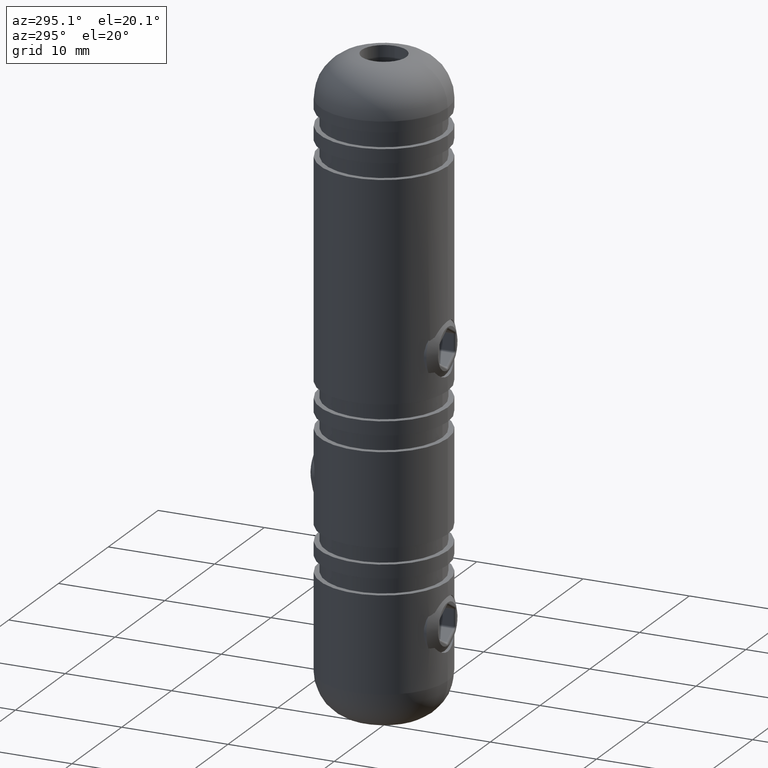
[diagram: clean part render]
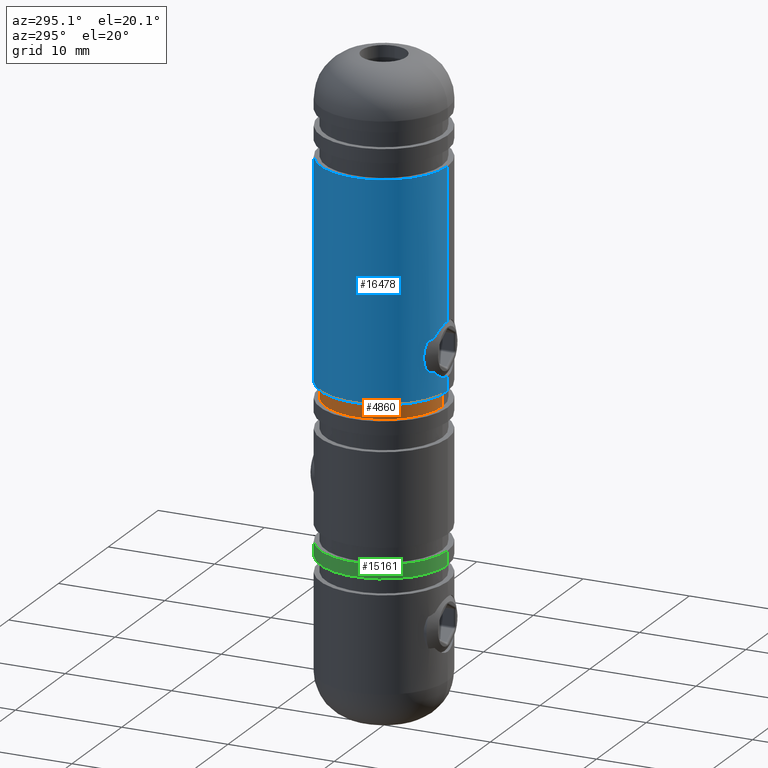
[diagram: same view with three faces highlighted in distinct colors, each labeled with its STEP entity id]
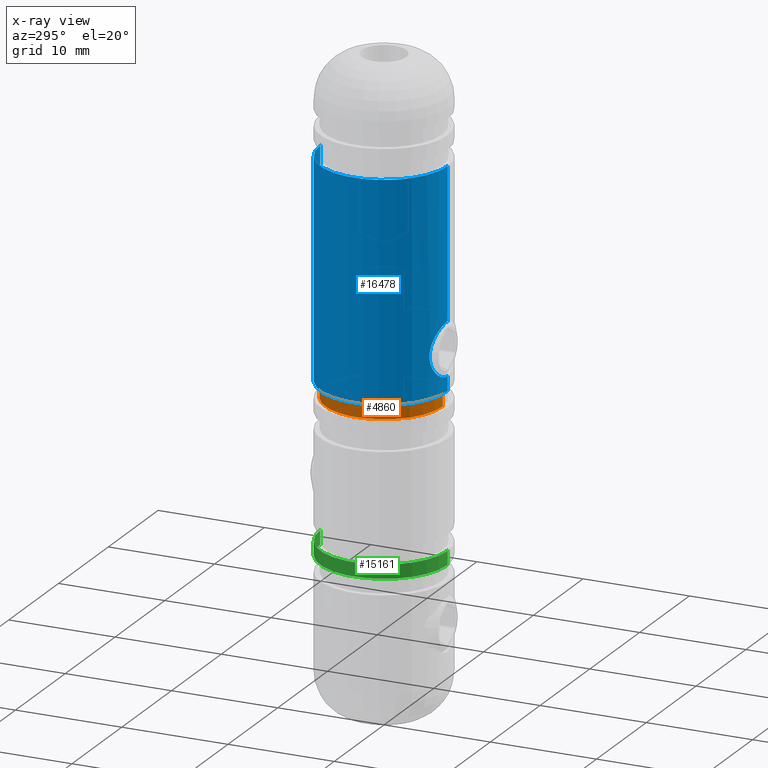
[diagram: x-ray of the same camera — body ghosted, the three highlighted faces saturated]
A machine part, auxiliary view with three faces highlighted in distinct colors.
The next image is the same camera in x-ray (body ghosted, the three faces saturated) — at least one of them is partly hidden behind the body in this view.
Their STEP definitions:

[orange] entity #4860 — the highlighted cylindrical surface (partial cylindrical patch) has radius 5.5 mm, axis along (0, 0, 1).
#1307 = VERTEX_POINT ( 'NONE', #1915 ) ;
#1667 = DIRECTION ( 'NONE',  ( -0.0000000000000000000, 6.237694939725493400E-017, 1.000000000000000000 ) ) ;
#1915 = CARTESIAN_POINT ( 'NONE',  ( 6.735557395310422300E-016, 5.499999999999981300, 0.2999999999999909400 ) ) ;
#2183 = AXIS2_PLACEMENT_3D ( 'NONE', #3380, #12903, #7274 ) ;
#2356 = CARTESIAN_POINT ( 'NONE',  ( 0.0000000000000000000, -5.499999999999984900, -1.200000000000006200 ) ) ;
#2532 = CARTESIAN_POINT ( 'NONE',  ( 0.0000000000000000000, -5.499999999999983100, 30.00000000000000000 ) ) ;
#3245 = ORIENTED_EDGE ( 'NONE', *, *, #13384, .F. ) ;
#3380 = CARTESIAN_POINT ( 'NONE',  ( 0.0000000000000000000, 3.851859888774471700E-031, 30.00000000000000000 ) ) ;
#3760 = ORIENTED_EDGE ( 'NONE', *, *, #3887, .F. ) ;
#3887 = EDGE_CURVE ( 'NONE', #1307, #14637, #17172, .T. ) ;
#4027 = DIRECTION ( 'NONE',  ( -0.0000000000000000000, 6.237694939725493400E-017, 1.000000000000000000 ) ) ;
#4427 = CYLINDRICAL_SURFACE ( 'NONE', #2183, 5.499999999999983100 ) ;
#4531 = VERTEX_POINT ( 'NONE', #2356 ) ;
#4860 = ADVANCED_FACE ( 'NONE', ( #10383 ), #4427, .T. ) ;
#5274 = CARTESIAN_POINT ( 'NONE',  ( 0.0000000000000000000, -1.852595397098471600E-015, 0.2999999999999912700 ) ) ;
#6372 = CARTESIAN_POINT ( 'NONE',  ( 6.735557395310422300E-016, 5.499999999999981300, -1.200000000000007100 ) ) ;
#7274 = DIRECTION ( 'NONE',  ( 0.0000000000000000000, -1.000000000000000000, 0.0000000000000000000 ) ) ;
#7361 = DIRECTION ( 'NONE',  ( 0.0000000000000000000, -1.000000000000000000, 7.885106708985511200E-017 ) ) ;
#7690 = AXIS2_PLACEMENT_3D ( 'NONE', #9995, #16751, #7361 ) ;
#7713 = CIRCLE ( 'NONE', #7690, 5.499999999999983100 ) ;
#8111 = ORIENTED_EDGE ( 'NONE', *, *, #10632, .T. ) ;
#8332 = LINE ( 'NONE', #2532, #14322 ) ;
#8981 = CARTESIAN_POINT ( 'NONE',  ( 0.0000000000000000000, -5.499999999999984900, 0.2999999999999915500 ) ) ;
#9012 = ORIENTED_EDGE ( 'NONE', *, *, #12153, .T. ) ;
#9322 = DIRECTION ( 'NONE',  ( -0.0000000000000000000, 6.237694939725493400E-017, 1.000000000000000000 ) ) ;
#9449 = EDGE_LOOP ( 'NONE', ( #3245, #8111, #9012, #3760 ) ) ;
#9556 = DIRECTION ( 'NONE',  ( 0.0000000000000000000, -1.000000000000000000, 5.913830031739132800E-017 ) ) ;
#9995 = CARTESIAN_POINT ( 'NONE',  ( 0.0000000000000000000, -1.946160821194353900E-015, -1.200000000000006600 ) ) ;
#10383 = FACE_OUTER_BOUND ( 'NONE', #9449, .T. ) ;
#10632 = EDGE_CURVE ( 'NONE', #13060, #4531, #7713, .T. ) ;
#12153 = EDGE_CURVE ( 'NONE', #4531, #14637, #8332, .T. ) ;
#12171 = CARTESIAN_POINT ( 'NONE',  ( 6.735557395310422300E-016, 5.499999999999983100, 30.00000000000000000 ) ) ;
#12903 = DIRECTION ( 'NONE',  ( -0.0000000000000000000, 6.237694939725493400E-017, 1.000000000000000000 ) ) ;
#13060 = VERTEX_POINT ( 'NONE', #6372 ) ;
#13384 = EDGE_CURVE ( 'NONE', #13060, #1307, #13672, .T. ) ;
#13672 = LINE ( 'NONE', #12171, #14946 ) ;
#14322 = VECTOR ( 'NONE', #9322, 1000.000000000000000 ) ;
#14637 = VERTEX_POINT ( 'NONE', #8981 ) ;
#14946 = VECTOR ( 'NONE', #1667, 1000.000000000000000 ) ;
#16626 = AXIS2_PLACEMENT_3D ( 'NONE', #5274, #4027, #9556 ) ;
#16751 = DIRECTION ( 'NONE',  ( -0.0000000000000000000, 6.237694939725493400E-017, 1.000000000000000000 ) ) ;
#17172 = CIRCLE ( 'NONE', #16626, 5.499999999999983100 ) ;

[blue] entity #16478 — the highlighted cylindrical surface (partial cylindrical patch) has radius 6 mm, axis along (0, 0, 1).
#330 = LINE ( 'NONE', #3829, #6719 ) ;
#753 = VERTEX_POINT ( 'NONE', #6421 ) ;
#986 = CARTESIAN_POINT ( 'NONE',  ( -0.3294735782554639700, -5.999999999999986700, 6.649999999999997700 ) ) ;
#1499 = EDGE_CURVE ( 'NONE', #16029, #2273, #16350, .T. ) ;
#1551 = CARTESIAN_POINT ( 'NONE',  ( -1.655142058905327400, -5.768422958052119600, 2.269449569317729200 ) ) ;
#1776 = CARTESIAN_POINT ( 'NONE',  ( -0.8134068127896111300, -5.946577916524682400, 1.780364398952567500 ) ) ;
#2201 = ORIENTED_EDGE ( 'NONE', *, *, #1499, .T. ) ;
#2241 = CARTESIAN_POINT ( 'NONE',  ( 0.0000000000000000000, -5.999999999999985800, 0.2999999999999916100 ) ) ;
#2273 = VERTEX_POINT ( 'NONE', #5025 ) ;
#2312 = CARTESIAN_POINT ( 'NONE',  ( -1.528475880810603400, -5.803710641115037200, 6.135004411042070100 ) ) ;
#2551 = CARTESIAN_POINT ( 'NONE',  ( -2.500106784638723500, -5.454307112671446400, 4.313628119896178800 ) ) ;
#2680 = CARTESIAN_POINT ( 'NONE',  ( 7.347880794884099000E-016, 5.999999999999982200, 0.2999999999999908900 ) ) ;
#2699 = CARTESIAN_POINT ( 'NONE',  ( -1.028502964275223300E-020, -5.999999999999985800, 6.649999999999996800 ) ) ;
#2785 = CARTESIAN_POINT ( 'NONE',  ( 0.0000000000000000000, -5.999999999999984000, 30.00000000000000000 ) ) ;
#2857 = VERTEX_POINT ( 'NONE', #2680 ) ;
#2937 = CARTESIAN_POINT ( 'NONE',  ( -2.181708341974953200, -5.590935308825282700, 2.886746876611114000 ) ) ;
#2957 = CYLINDRICAL_SURFACE ( 'NONE', #4563, 5.999999999999984000 ) ;
#3554 = ORIENTED_EDGE ( 'NONE', *, *, #5088, .F. ) ;
#3829 = CARTESIAN_POINT ( 'NONE',  ( 7.347880794884099000E-016, 5.999999999999984000, 30.00000000000000000 ) ) ;
#3971 = DIRECTION ( 'NONE',  ( -0.0000000000000000000, 6.237694939725493400E-017, 1.000000000000000000 ) ) ;
#4239 = EDGE_CURVE ( 'NONE', #2273, #9236, #11058, .T. ) ;
#4290 = CARTESIAN_POINT ( 'NONE',  ( -2.369582593462938200, -5.512683608006666300, 3.336677635524405000 ) ) ;
#4563 = AXIS2_PLACEMENT_3D ( 'NONE', #5928, #14416, #10281 ) ;
#4809 = VECTOR ( 'NONE', #11251, 1000.000000000000000 ) ;
#5025 = CARTESIAN_POINT ( 'NONE',  ( 0.0000000000000000000, -5.999999999999985800, 1.649999999999998400 ) ) ;
#5058 = CARTESIAN_POINT ( 'NONE',  ( -1.258252906115198800, -5.868227615580733100, 6.316398083069889100 ) ) ;
#5088 = EDGE_CURVE ( 'NONE', #2857, #753, #330, .T. ) ;
#5226 = CARTESIAN_POINT ( 'NONE',  ( -2.370510600221101600, -5.512296490036567900, 4.961080357092434700 ) ) ;
#5928 = CARTESIAN_POINT ( 'NONE',  ( 0.0000000000000000000, 3.851859888774471700E-031, 30.00000000000000000 ) ) ;
#6002 = VERTEX_POINT ( 'NONE', #6179 ) ;
#6179 = CARTESIAN_POINT ( 'NONE',  ( 0.0000000000000000000, -5.999999999999984900, 20.69999999999999600 ) ) ;
#6421 = CARTESIAN_POINT ( 'NONE',  ( 7.347880794884099000E-016, 5.999999999999983100, 20.69999999999999600 ) ) ;
#6719 = VECTOR ( 'NONE', #15970, 1000.000000000000000 ) ;
#6894 = CARTESIAN_POINT ( 'NONE',  ( -2.499892161112044200, -5.454405485178515500, 3.983124959841533000 ) ) ;
#6896 = LINE ( 'NONE', #13824, #4809 ) ;
#6912 = EDGE_CURVE ( 'NONE', #9236, #6002, #6896, .T. ) ;
#7054 = CARTESIAN_POINT ( 'NONE',  ( 0.0000000000000000000, -5.999999999999985800, 1.649999999999998400 ) ) ;
#7175 = CIRCLE ( 'NONE', #14277, 5.999999999999984000 ) ;
#7230 = CARTESIAN_POINT ( 'NONE',  ( -1.258442380232151600, -5.868189014291110600, 1.983703495810522200 ) ) ;
#7297 = CARTESIAN_POINT ( 'NONE',  ( -2.418590853962363100, -5.491054996713683200, 3.496052146183322500 ) ) ;
#7682 = ORIENTED_EDGE ( 'NONE', *, *, #16077, .T. ) ;
#7846 = CARTESIAN_POINT ( 'NONE',  ( 0.0000000000000000000, -5.801056293944706400E-016, 20.69999999999999600 ) ) ;
#8540 = ORIENTED_EDGE ( 'NONE', *, *, #6912, .T. ) ;
#8574 = CARTESIAN_POINT ( 'NONE',  ( -0.1672401054569762300, -5.999999999999986700, 1.649999999999998600 ) ) ;
#9213 = DIRECTION ( 'NONE',  ( -0.0000000000000000000, 6.237694939725493400E-017, 1.000000000000000000 ) ) ;
#9236 = VERTEX_POINT ( 'NONE', #2699 ) ;
#9705 = ORIENTED_EDGE ( 'NONE', *, *, #4239, .T. ) ;
#9939 = CARTESIAN_POINT ( 'NONE',  ( -0.6535671553393456200, -5.966488535110083400, 1.731352177383440400 ) ) ;
#10175 = CARTESIAN_POINT ( 'NONE',  ( -2.483561809314554800, -5.461976513600083300, 3.819621045319106800 ) ) ;
#10180 = FACE_OUTER_BOUND ( 'NONE', #17335, .T. ) ;
#10281 = DIRECTION ( 'NONE',  ( 0.0000000000000000000, -1.000000000000000000, 0.0000000000000000000 ) ) ;
#10463 = CARTESIAN_POINT ( 'NONE',  ( -1.985928082928958100, -5.662626222328949400, 5.677192138629329100 ) ) ;
#10583 = CARTESIAN_POINT ( 'NONE',  ( -0.6621311939231107100, -5.971116335839147900, 6.582602729024014100 ) ) ;
#10648 = CARTESIAN_POINT ( 'NONE',  ( -2.243493183772681000, -5.565201832296432700, 5.265307215877003300 ) ) ;
#11058 = B_SPLINE_CURVE_WITH_KNOTS ( 'NONE', 3,
 ( #7054, #8574, #13823, #9939, #1776, #11303, #7230, #12678, #1551, #11070, #2937, #4290, #7297, #10175, #6894, #2551, #13213, #11908, #5226, #10648, #13395, #10463, #17322, #14765, #2312, #5058, #12075, #10583, #986, #15937 ),
 .UNSPECIFIED., .F., .F.,
 ( 4, 2, 2, 2, 2, 2, 2, 2, 2, 2, 2, 2, 2, 2, 4 ),
 ( 0.0000000000000000000, 0.0004942134665145555800, 0.0009884269330291111500, 0.001482640399543666700, 0.001976853866058222300, 0.002965280799087334300, 0.003459494265601890300, 0.003953707732116446300, 0.004447921198631001900, 0.004942134665145559200, 0.005436348131660114800, 0.005930561598174672100, 0.006424775064689228600, 0.006918988531203785000, 0.007907415464232896200 ),
 .UNSPECIFIED. ) ;
#11070 = CARTESIAN_POINT ( 'NONE',  ( -1.996726160520225100, -5.663027394641069600, 2.611512018285255800 ) ) ;
#11251 = DIRECTION ( 'NONE',  ( -0.0000000000000000000, 6.237694939725493400E-017, 1.000000000000000000 ) ) ;
#11303 = CARTESIAN_POINT ( 'NONE',  ( -1.115495851646002100, -5.897379805078875500, 1.906682695246939300 ) ) ;
#11908 = CARTESIAN_POINT ( 'NONE',  ( -2.418593444814171700, -5.491053255503489400, 4.803795991876109300 ) ) ;
#12075 = CARTESIAN_POINT ( 'NONE',  ( -1.112789484202404600, -5.897869239595872900, 6.394591945689420200 ) ) ;
#12510 = EDGE_CURVE ( 'NONE', #753, #6002, #14104, .T. ) ;
#12678 = CARTESIAN_POINT ( 'NONE',  ( -1.528829007836515400, -5.803619680562198000, 2.165258295589693700 ) ) ;
#12778 = VECTOR ( 'NONE', #3971, 1000.000000000000000 ) ;
#13213 = CARTESIAN_POINT ( 'NONE',  ( -2.483395613810239300, -5.462051476449266500, 4.481345251360887800 ) ) ;
#13263 = CARTESIAN_POINT ( 'NONE',  ( 0.0000000000000000000, -1.852595397098471600E-015, 0.2999999999999912700 ) ) ;
#13395 = CARTESIAN_POINT ( 'NONE',  ( -2.166361182966829000, -5.596081245774391800, 5.408215165936125500 ) ) ;
#13823 = CARTESIAN_POINT ( 'NONE',  ( -0.3313286651165027700, -5.993025678387384800, 1.666609448343191700 ) ) ;
#13824 = CARTESIAN_POINT ( 'NONE',  ( 0.0000000000000000000, -5.999999999999984000, 30.00000000000000000 ) ) ;
#14104 = CIRCLE ( 'NONE', #15803, 5.999999999999984000 ) ;
#14277 = AXIS2_PLACEMENT_3D ( 'NONE', #13263, #9213, #15926 ) ;
#14416 = DIRECTION ( 'NONE',  ( -0.0000000000000000000, 6.237694939725493400E-017, 1.000000000000000000 ) ) ;
#14765 = CARTESIAN_POINT ( 'NONE',  ( -1.652909006526312300, -5.769071837164845300, 6.032548781030474300 ) ) ;
#15099 = ORIENTED_EDGE ( 'NONE', *, *, #12510, .F. ) ;
#15803 = AXIS2_PLACEMENT_3D ( 'NONE', #7846, #17338, #16127 ) ;
#15926 = DIRECTION ( 'NONE',  ( 0.0000000000000000000, -1.000000000000000000, 6.324512672832125600E-017 ) ) ;
#15937 = CARTESIAN_POINT ( 'NONE',  ( -1.028502964275223300E-020, -5.999999999999985800, 6.649999999999996800 ) ) ;
#15970 = DIRECTION ( 'NONE',  ( -0.0000000000000000000, 6.237694939725493400E-017, 1.000000000000000000 ) ) ;
#16029 = VERTEX_POINT ( 'NONE', #2241 ) ;
#16077 = EDGE_CURVE ( 'NONE', #2857, #16029, #7175, .T. ) ;
#16127 = DIRECTION ( 'NONE',  ( 0.0000000000000000000, -1.000000000000000000, 0.0000000000000000000 ) ) ;
#16350 = LINE ( 'NONE', #2785, #12778 ) ;
#16478 = ADVANCED_FACE ( 'NONE', ( #10180 ), #2957, .T. ) ;
#17322 = CARTESIAN_POINT ( 'NONE',  ( -1.881449780072503200, -5.698635342894778700, 5.804159853786888600 ) ) ;
#17335 = EDGE_LOOP ( 'NONE', ( #3554, #7682, #2201, #9705, #8540, #15099 ) ) ;
#17338 = DIRECTION ( 'NONE',  ( -0.0000000000000000000, 6.237694939725493400E-017, 1.000000000000000000 ) ) ;

[green] entity #15161 — the highlighted cylindrical surface (partial cylindrical patch) has radius 6 mm, axis along (0, 0, 1).
#338 = CARTESIAN_POINT ( 'NONE',  ( 7.347880794884102000E-016, 5.999999999999986700, 30.00000000000000000 ) ) ;
#486 = CARTESIAN_POINT ( 'NONE',  ( 0.0000000000000000000, -5.999999999999986700, 30.00000000000000000 ) ) ;
#835 = ORIENTED_EDGE ( 'NONE', *, *, #8090, .T. ) ;
#962 = DIRECTION ( 'NONE',  ( -0.0000000000000000000, 6.237694939725493400E-017, 1.000000000000000000 ) ) ;
#1149 = CARTESIAN_POINT ( 'NONE',  ( 0.0000000000000000000, 3.851859888774471700E-031, 30.00000000000000000 ) ) ;
#1194 = AXIS2_PLACEMENT_3D ( 'NONE', #9385, #6766, #14865 ) ;
#1727 = EDGE_CURVE ( 'NONE', #10677, #11521, #2760, .T. ) ;
#2353 = DIRECTION ( 'NONE',  ( -0.0000000000000000000, 6.237694939725493400E-017, 1.000000000000000000 ) ) ;
#2760 = LINE ( 'NONE', #338, #3619 ) ;
#2920 = ORIENTED_EDGE ( 'NONE', *, *, #1727, .F. ) ;
#3619 = VECTOR ( 'NONE', #5902, 1000.000000000000000 ) ;
#4381 = CARTESIAN_POINT ( 'NONE',  ( 7.347880794884104000E-016, 5.999999999999985800, -14.20000000000000500 ) ) ;
#4870 = VERTEX_POINT ( 'NONE', #14286 ) ;
#5094 = DIRECTION ( 'NONE',  ( 0.0000000000000000000, -1.000000000000000000, 0.0000000000000000000 ) ) ;
#5458 = EDGE_LOOP ( 'NONE', ( #2920, #9033, #835, #7469 ) ) ;
#5902 = DIRECTION ( 'NONE',  ( -0.0000000000000000000, 6.237694939725493400E-017, 1.000000000000000000 ) ) ;
#6420 = CARTESIAN_POINT ( 'NONE',  ( 0.0000000000000000000, -2.838151197575099100E-015, -15.50000000000000000 ) ) ;
#6766 = DIRECTION ( 'NONE',  ( -0.0000000000000000000, 6.237694939725493400E-017, 1.000000000000000000 ) ) ;
#7359 = AXIS2_PLACEMENT_3D ( 'NONE', #1149, #962, #7864 ) ;
#7469 = ORIENTED_EDGE ( 'NONE', *, *, #11621, .F. ) ;
#7844 = FACE_OUTER_BOUND ( 'NONE', #5458, .T. ) ;
#7864 = DIRECTION ( 'NONE',  ( 0.0000000000000000000, -1.000000000000000000, 0.0000000000000000000 ) ) ;
#8090 = EDGE_CURVE ( 'NONE', #4870, #10480, #15021, .T. ) ;
#9033 = ORIENTED_EDGE ( 'NONE', *, *, #15090, .T. ) ;
#9385 = CARTESIAN_POINT ( 'NONE',  ( 0.0000000000000000000, -2.757061163358667700E-015, -14.20000000000000500 ) ) ;
#9545 = AXIS2_PLACEMENT_3D ( 'NONE', #6420, #2353, #5094 ) ;
#10040 = DIRECTION ( 'NONE',  ( -0.0000000000000000000, 6.237694939725493400E-017, 1.000000000000000000 ) ) ;
#10111 = VECTOR ( 'NONE', #10040, 1000.000000000000000 ) ;
#10225 = CARTESIAN_POINT ( 'NONE',  ( 7.347880794884102000E-016, 5.999999999999984000, -15.50000000000000000 ) ) ;
#10480 = VERTEX_POINT ( 'NONE', #17119 ) ;
#10677 = VERTEX_POINT ( 'NONE', #10225 ) ;
#11050 = CIRCLE ( 'NONE', #9545, 5.999999999999986700 ) ;
#11521 = VERTEX_POINT ( 'NONE', #4381 ) ;
#11621 = EDGE_CURVE ( 'NONE', #11521, #10480, #12188, .T. ) ;
#12188 = CIRCLE ( 'NONE', #1194, 5.999999999999986700 ) ;
#12545 = CYLINDRICAL_SURFACE ( 'NONE', #7359, 5.999999999999986700 ) ;
#14286 = CARTESIAN_POINT ( 'NONE',  ( 0.0000000000000000000, -5.999999999999988500, -15.50000000000000000 ) ) ;
#14865 = DIRECTION ( 'NONE',  ( 0.0000000000000000000, -1.000000000000000000, 0.0000000000000000000 ) ) ;
#15021 = LINE ( 'NONE', #486, #10111 ) ;
#15090 = EDGE_CURVE ( 'NONE', #10677, #4870, #11050, .T. ) ;
#15161 = ADVANCED_FACE ( 'NONE', ( #7844 ), #12545, .T. ) ;
#17119 = CARTESIAN_POINT ( 'NONE',  ( 0.0000000000000000000, -5.999999999999989300, -14.20000000000000500 ) ) ;